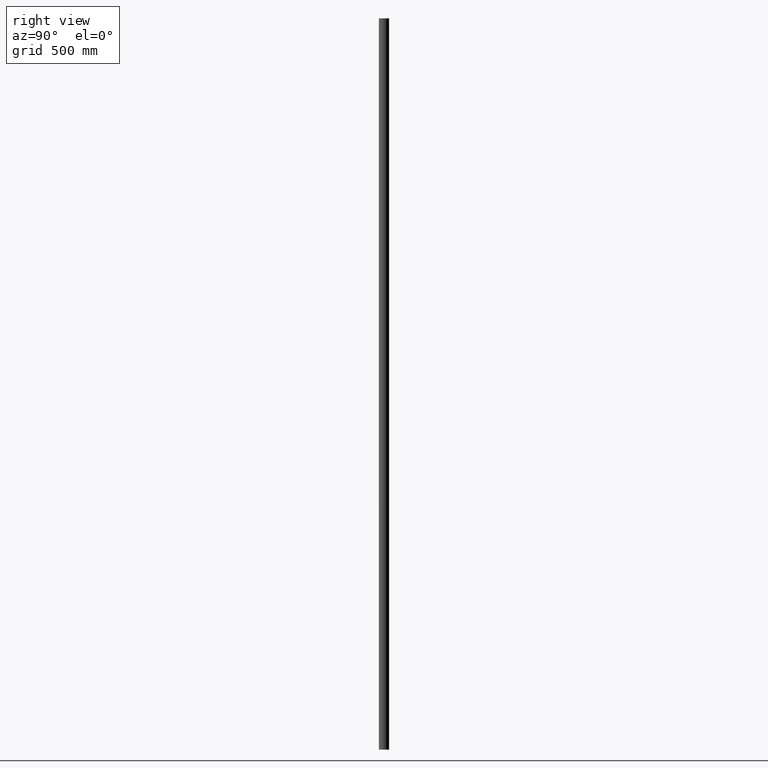
[diagram: clean part render]
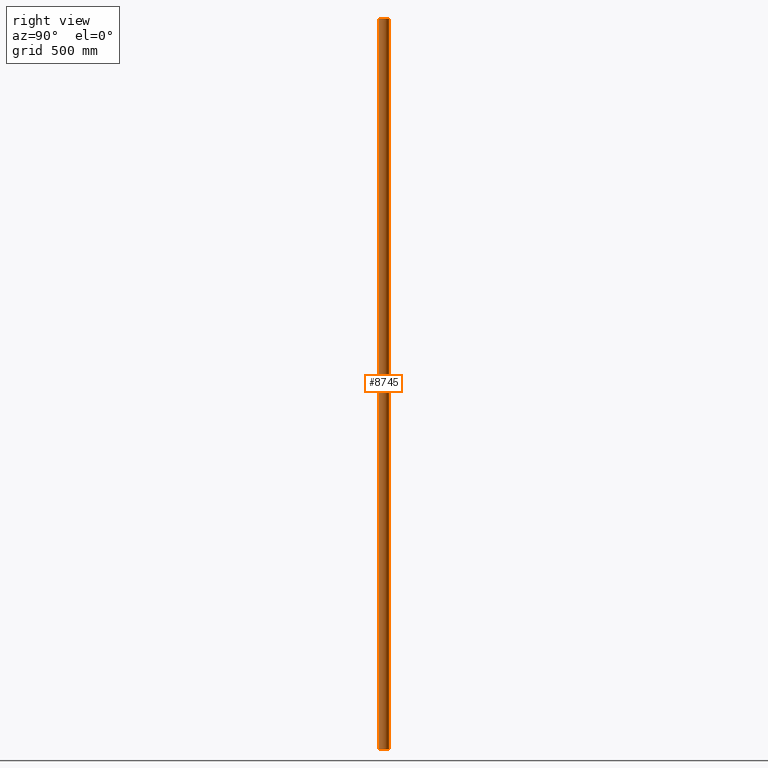
[diagram: same view with one face highlighted and labeled with its STEP entity id]
A machine part, right view. The second image highlights one B-rep face of the part: STEP entity #8745.
In plain terms, the highlighted cylindrical surface (edge-blend (fillet) strip) has radius 24.15 mm, axis along (0, 0, 1).
Its self-contained STEP definition (entity closure, byte-faithful):
#39 = CARTESIAN_POINT ( 'NONE',  ( 16.89954853273138013, -0.2806658246795221689, -1500.000000000000000 ) ) ;
#520 = ORIENTED_EDGE ( 'NONE', *, *, #16474, .T. ) ;
#975 = CARTESIAN_POINT ( 'NONE',  ( 1.045905862409840323E-15, 16.97122564813749790, -1500.000000000000000 ) ) ;
#1131 = DIRECTION ( 'NONE',  ( 0.000000000000000000, 0.000000000000000000, 1.000000000000000000 ) ) ;
#1227 = DIRECTION ( 'NONE',  ( 0.000000000000000000, 0.000000000000000000, 1.000000000000000000 ) ) ;
#1799 = ORIENTED_EDGE ( 'NONE', *, *, #13036, .F. ) ;
#2108 = CARTESIAN_POINT ( 'NONE',  ( 16.89954853273138013, -0.2806658246795221689, 1500.000000000000000 ) ) ;
#2237 = DIRECTION ( 'NONE',  ( 1.000000000000000000, 0.000000000000000000, 0.000000000000000000 ) ) ;
#2685 = CARTESIAN_POINT ( 'NONE',  ( -16.89954853273139079, -0.2806658246795150635, -1500.000000000000000 ) ) ;
#5350 = CYLINDRICAL_SURFACE ( 'NONE', #12778, 24.15000000000000213 ) ;
#6435 = CARTESIAN_POINT ( 'NONE',  ( 1.045905862409840323E-15, 16.97122564813749790, -1500.000000000000000 ) ) ;
#6458 = CIRCLE ( 'NONE', #10157, 24.15000000000000213 ) ;
#6495 = DIRECTION ( 'NONE',  ( 1.000000000000000000, 0.000000000000000000, 0.000000000000000000 ) ) ;
#6553 = CARTESIAN_POINT ( 'NONE',  ( 1.045905862409840323E-15, 16.97122564813749790, 1500.000000000000000 ) ) ;
#7112 = VERTEX_POINT ( 'NONE', #11103 ) ;
#7517 = LINE ( 'NONE', #15633, #12840 ) ;
#7617 = DIRECTION ( 'NONE',  ( 0.000000000000000000, 0.000000000000000000, 1.000000000000000000 ) ) ;
#7957 = VERTEX_POINT ( 'NONE', #2108 ) ;
#8745 = ADVANCED_FACE ( 'NONE', ( #16213 ), #5350, .T. ) ;
#9314 = EDGE_LOOP ( 'NONE', ( #1799, #11005, #520, #12722 ) ) ;
#9517 = LINE ( 'NONE', #39, #16114 ) ;
#10157 = AXIS2_PLACEMENT_3D ( 'NONE', #6553, #1131, #6495 ) ;
#10290 = CIRCLE ( 'NONE', #11611, 24.15000000000000213 ) ;
#10484 = EDGE_CURVE ( 'NONE', #14397, #7112, #7517, .T. ) ;
#10690 = DIRECTION ( 'NONE',  ( 0.000000000000000000, 0.000000000000000000, 1.000000000000000000 ) ) ;
#11005 = ORIENTED_EDGE ( 'NONE', *, *, #14120, .F. ) ;
#11103 = CARTESIAN_POINT ( 'NONE',  ( -16.89954853273139079, -0.2806658246795150635, 1500.000000000000000 ) ) ;
#11611 = AXIS2_PLACEMENT_3D ( 'NONE', #975, #14072, #2237 ) ;
#12056 = DIRECTION ( 'NONE',  ( 1.000000000000000000, 0.000000000000000000, 0.000000000000000000 ) ) ;
#12722 = ORIENTED_EDGE ( 'NONE', *, *, #10484, .T. ) ;
#12778 = AXIS2_PLACEMENT_3D ( 'NONE', #6435, #7617, #12056 ) ;
#12840 = VECTOR ( 'NONE', #1227, 1000.000000000000000 ) ;
#13036 = EDGE_CURVE ( 'NONE', #7957, #7112, #6458, .T. ) ;
#13326 = CARTESIAN_POINT ( 'NONE',  ( 16.89954853273138013, -0.2806658246795221689, -1500.000000000000000 ) ) ;
#14072 = DIRECTION ( 'NONE',  ( 0.000000000000000000, 0.000000000000000000, 1.000000000000000000 ) ) ;
#14120 = EDGE_CURVE ( 'NONE', #16660, #7957, #9517, .T. ) ;
#14397 = VERTEX_POINT ( 'NONE', #2685 ) ;
#15633 = CARTESIAN_POINT ( 'NONE',  ( -16.89954853273139079, -0.2806658246795150635, -1500.000000000000000 ) ) ;
#16114 = VECTOR ( 'NONE', #10690, 1000.000000000000000 ) ;
#16213 = FACE_OUTER_BOUND ( 'NONE', #9314, .T. ) ;
#16474 = EDGE_CURVE ( 'NONE', #16660, #14397, #10290, .T. ) ;
#16660 = VERTEX_POINT ( 'NONE', #13326 ) ;